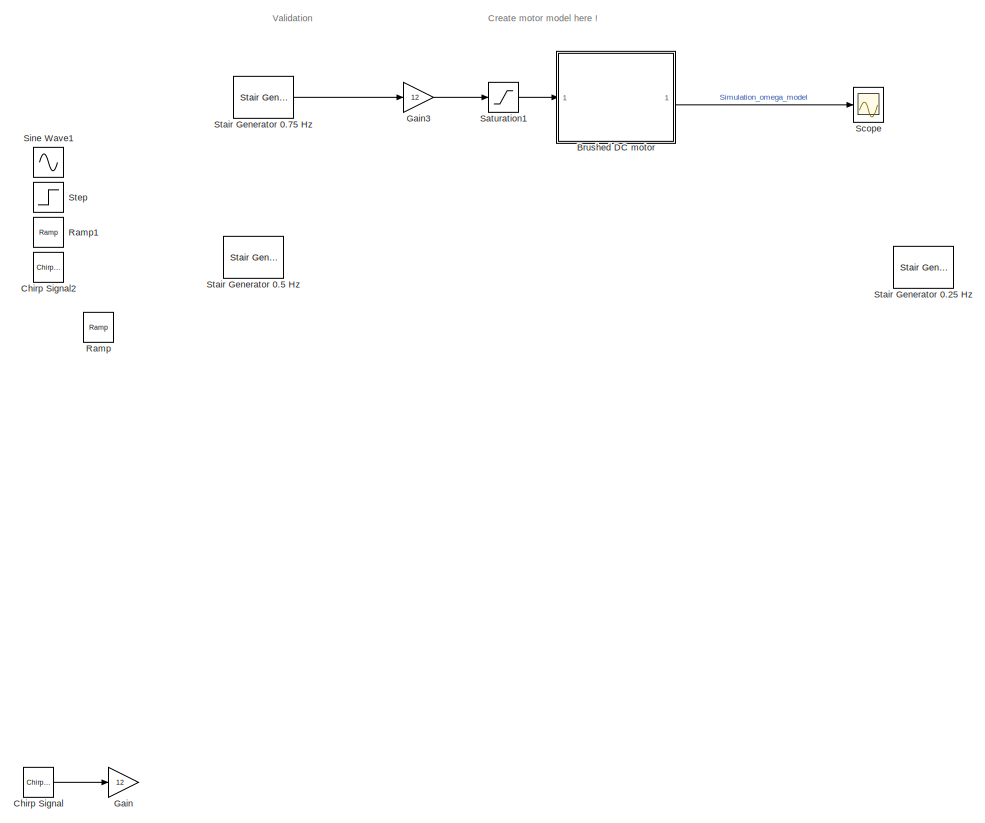
[diagram: root canvas - part 1/2, left side, full height]
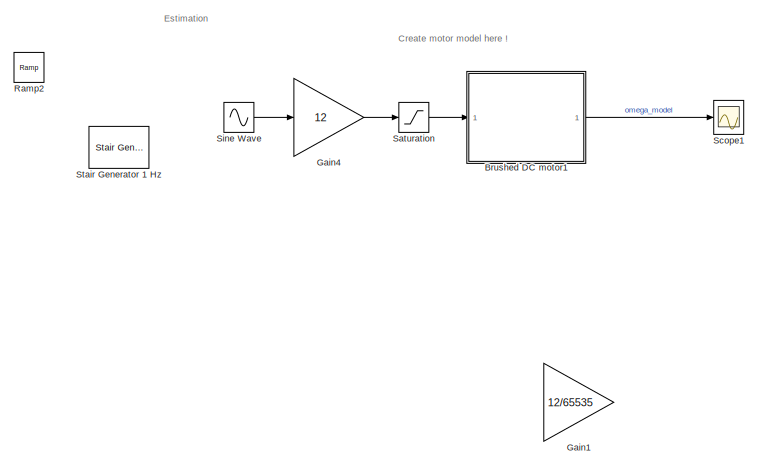
[diagram: root canvas - part 2/2, top right region]
MODEL slx_f4a1346be4b6
KIND model
CONFIG AbsTol = auto
CONFIG EnableMultiTasking = off
CONFIG FixedStep = 0.0005
CONFIG MaxStep = auto
CONFIG MinStep = auto
CONFIG RelTol = 1e-3
CONFIG SampleTimeConstraint = Unconstrained
CONFIG SolverName = FixedStepAuto
CONFIG StartTime = 0.0
CONFIG StopTime = 20
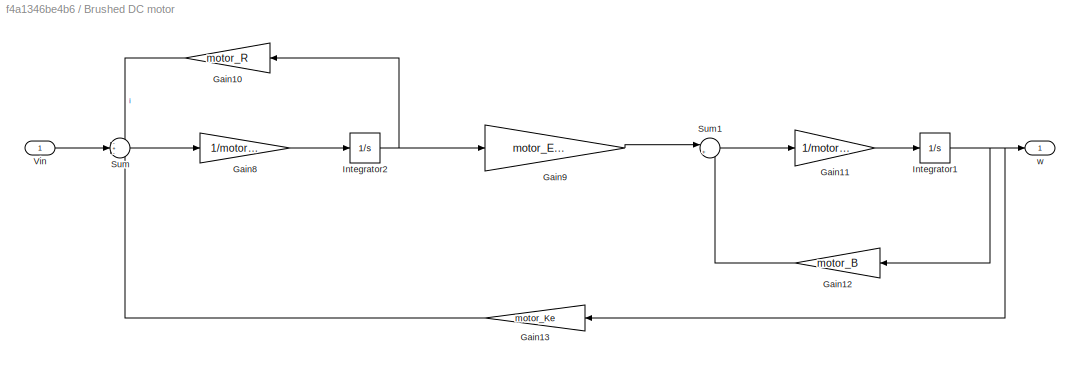
BLOCK [SubSystem] Brushed DC motor
  Commented = on
BLOCK [Gain] Brushed DC motor/Gain10
  Gain = motor_R
  NameLocation = top
BLOCK [Gain] Brushed DC motor/Gain11
  Gain = 1/motor_J
BLOCK [Gain] Brushed DC motor/Gain12
  Gain = motor_B
  NameLocation = top
BLOCK [Gain] Brushed DC motor/Gain13
  Gain = motor_Ke
  NameLocation = top
BLOCK [Gain] Brushed DC motor/Gain8
  Gain = 1/motor_L
BLOCK [Gain] Brushed DC motor/Gain9
  Gain = motor_Eff*motor_Ke
BLOCK [Integrator] Brushed DC motor/Integrator1
BLOCK [Integrator] Brushed DC motor/Integrator2
BLOCK [Sum] Brushed DC motor/Sum
  Inputs = -+-
BLOCK [Sum] Brushed DC motor/Sum1
  Inputs = |+-
BLOCK [Inport] Brushed DC motor/Vin
BLOCK [Outport] Brushed DC motor/w
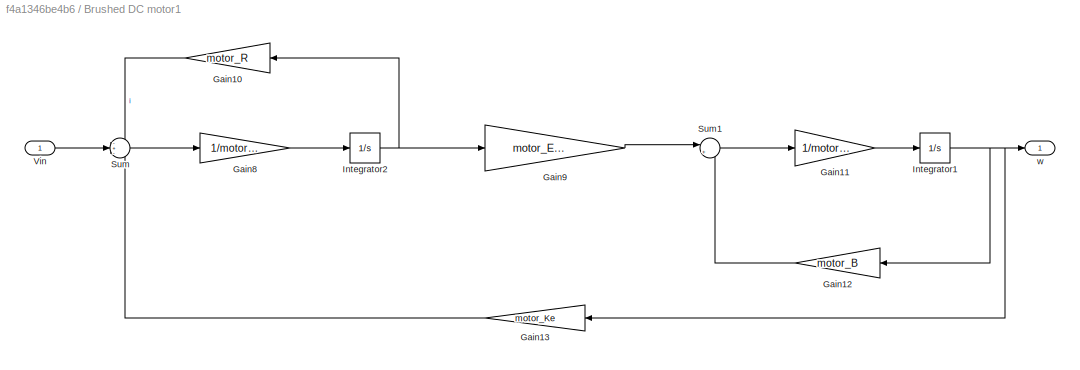
BLOCK [SubSystem] Brushed DC motor1
BLOCK [Gain] Brushed DC motor1/Gain10
  Gain = motor_R
  NameLocation = top
BLOCK [Gain] Brushed DC motor1/Gain11
  Gain = 1/motor_J
BLOCK [Gain] Brushed DC motor1/Gain12
  Gain = motor_B
  NameLocation = top
BLOCK [Gain] Brushed DC motor1/Gain13
  Gain = motor_Ke
  NameLocation = top
BLOCK [Gain] Brushed DC motor1/Gain8
  Gain = 1/motor_L
BLOCK [Gain] Brushed DC motor1/Gain9
  Gain = motor_Eff*motor_Ke
BLOCK [Integrator] Brushed DC motor1/Integrator1
BLOCK [Integrator] Brushed DC motor1/Integrator2
BLOCK [Sum] Brushed DC motor1/Sum
  Inputs = -+-
BLOCK [Sum] Brushed DC motor1/Sum1
  Inputs = |+-
BLOCK [Inport] Brushed DC motor1/Vin
BLOCK [Outport] Brushed DC motor1/w
BLOCK [Reference] Chirp Signal  REF=simulink/Sources/Chirp Signal
  Commented = on
  SourceBlock = simulink/Sources/Chirp Signal
  SourceType = chirp
BLOCK [Reference] Chirp Signal2  REF=simulink/Sources/Chirp Signal
  Commented = on
  SourceBlock = simulink/Sources/Chirp Signal
  SourceType = chirp
BLOCK [Gain] Gain
  Commented = on
  Gain = 12
BLOCK [Gain] Gain1
  Commented = on
  Gain = 12/65535
BLOCK [Gain] Gain3
  Commented = on
  Gain = 12
BLOCK [Gain] Gain4
  Gain = 12
BLOCK [Reference] Ramp  REF=simulink/Sources/Ramp
  Commented = on
  SourceBlock = simulink/Sources/Ramp
  SourceType = Ramp
BLOCK [Reference] Ramp1  REF=simulink/Sources/Ramp
  Commented = on
  SourceBlock = simulink/Sources/Ramp
  SourceType = Ramp
BLOCK [Reference] Ramp2  REF=simulink/Sources/Ramp
  Commented = on
  SourceBlock = simulink/Sources/Ramp
  SourceType = Ramp
BLOCK [Saturate] Saturation
  LowerLimit = -12
  UpperLimit = 12
BLOCK [Saturate] Saturation1
  Commented = on
  LowerLimit = -12
  UpperLimit = 12
BLOCK [Scope] Scope
  ActiveDisplayYMaximum = 73726.875
  ActiveDisplayYMinimum = -8191.8749999999982
  Floating = off
  GraphicalSettings = {"Style":{"BackgroundColor":[0.12941176470588237,0.12941176470588237,0.12941176470588237],"AxesColor":[0.07058823529411765,0.07058823529411765,0.07058823529411765],"LabelsColor":[0.8509803921568627,0.8509803921568627,0.8509803921568627],"PreserveColors":false,"Visible":[true,true],"LineStyle":["-","-"],"LineWidth":[1.5,1.5],"BarWidth":[0.9,0.9],"LineColor":["auto","auto"],"LineFaceAlpha":[1,1],"Li...<+2116ch>
  MultipleDisplayCache = [{"MaxYLimMag":73726.875,"MaxYLimReal":73726.875,"MinYLimMag":0,"MinYLimReal":-8191.8749999999982,"PlotAsMagnitudePhase":false,"ShowGrid":true,"ShowLegend":false,"Title":"%<SignalLabel>","YLabel":""}]
  NumInputPorts = 2
  ScopeFrameLocation = window
  WasSavedAsWebScope = on
  WindowPosition = [488.000000,222.000000,560.000000,420.000000,]
BLOCK [Scope] Scope1
  ActiveDisplayYMaximum = 51.071650378806922
  ActiveDisplayYMinimum = -34.239482473644017
  DataLoggingVariableName = ScopeData1
  Floating = off
  GraphicalSettings = {"Style":{"BackgroundColor":[0.12941176470588237,0.12941176470588237,0.12941176470588237],"AxesColor":[0.07058823529411765,0.07058823529411765,0.07058823529411765],"LabelsColor":[0.8509803921568627,0.8509803921568627,0.8509803921568627],"PreserveColors":false,"Visible":[true],"LineStyle":["-"],"LineWidth":[1.5],"BarWidth":[0.9],"LineColor":["auto"],"LineFaceAlpha":[1],"LineEdgeAlpha":[1],"Marker":...<+2007ch>
  MultipleDisplayCache = [{"MaxYLimMag":51.071650378806922,"MaxYLimReal":51.071650378806922,"MinYLimMag":0,"MinYLimReal":-34.239482473644017,"PlotAsMagnitudePhase":false,"ShowGrid":true,"ShowLegend":false,"Title":"%<SignalLabel>","YLabel":""}]
  NumInputPorts = 1
  ScopeFrameLocation = window
  WasSavedAsWebScope = on
  WindowPosition = [488.000000,222.000000,560.000000,420.000000,]
BLOCK [Sin] Sine Wave
  Frequency = 1*2*pi
  SampleTime = 0
BLOCK [Sin] Sine Wave1
  Commented = on
  Frequency = 0.5*2*pi
  SampleTime = 0
BLOCK [Reference] Stair Generator 0.25 Hz  REF=eeStairGenerator/Stair Generator
  Commented = on
  LibrarySourceBlock = ee_sl_lib/General Control/Stair Generator
  SourceBlock = eeStairGenerator/Stair Generator
  SourceType = Stair Generator
BLOCK [Reference] Stair Generator 0.5 Hz  REF=eeStairGenerator/Stair Generator
  Commented = on
  LibrarySourceBlock = ee_sl_lib/General Control/Stair Generator
  SourceBlock = eeStairGenerator/Stair Generator
  SourceType = Stair Generator
BLOCK [Reference] Stair Generator 0.75 Hz  REF=eeStairGenerator/Stair Generator
  Commented = on
  LibrarySourceBlock = ee_sl_lib/General Control/Stair Generator
  SourceBlock = eeStairGenerator/Stair Generator
  SourceType = Stair Generator
BLOCK [Reference] Stair Generator 1 Hz  REF=eeStairGenerator/Stair Generator
  Commented = on
  LibrarySourceBlock = ee_sl_lib/General Control/Stair Generator
  SourceBlock = eeStairGenerator/Stair Generator
  SourceType = Stair Generator
BLOCK [Step] Step
  After = 0.6*12
  Commented = on
  SampleTime = 0
  Time = 10
ANNOTATION (root): Estimation
ANNOTATION (root): Validation
ANNOTATION (root): Create motor model here !
LINE Brushed DC motor/Gain10:1 -> Brushed DC motor/Sum:1
LINE Brushed DC motor/Gain11:1 -> Brushed DC motor/Integrator1:1
LINE Brushed DC motor/Gain12:1 -> Brushed DC motor/Sum1:2
LINE Brushed DC motor/Gain13:1 -> Brushed DC motor/Sum:3
LINE Brushed DC motor/Gain8:1 -> Brushed DC motor/Integrator2:1
LINE Brushed DC motor/Gain9:1 -> Brushed DC motor/Sum1:1
NET Brushed DC motor/Integrator1:1 -> Brushed DC motor/Gain12:1, Brushed DC motor/Gain13:1, Brushed DC motor/w:1
NET Brushed DC motor/Integrator2:1 -> Brushed DC motor/Gain10:1, Brushed DC motor/Gain9:1
LINE Brushed DC motor/Sum1:1 -> Brushed DC motor/Gain11:1
LINE Brushed DC motor/Sum:1 -> Brushed DC motor/Gain8:1
LINE Brushed DC motor/Vin:1 -> Brushed DC motor/Sum:2
LINE Brushed DC motor1/Gain10:1 -> Brushed DC motor1/Sum:1
LINE Brushed DC motor1/Gain11:1 -> Brushed DC motor1/Integrator1:1
LINE Brushed DC motor1/Gain12:1 -> Brushed DC motor1/Sum1:2
LINE Brushed DC motor1/Gain13:1 -> Brushed DC motor1/Sum:3
LINE Brushed DC motor1/Gain8:1 -> Brushed DC motor1/Integrator2:1
LINE Brushed DC motor1/Gain9:1 -> Brushed DC motor1/Sum1:1
NET Brushed DC motor1/Integrator1:1 -> Brushed DC motor1/Gain12:1, Brushed DC motor1/Gain13:1, Brushed DC motor1/w:1
NET Brushed DC motor1/Integrator2:1 -> Brushed DC motor1/Gain10:1, Brushed DC motor1/Gain9:1
LINE Brushed DC motor1/Sum1:1 -> Brushed DC motor1/Gain11:1
LINE Brushed DC motor1/Sum:1 -> Brushed DC motor1/Gain8:1
LINE Brushed DC motor1/Vin:1 -> Brushed DC motor1/Sum:2
LINE Brushed DC motor1:1 -> Scope1:1
LINE Brushed DC motor:1 -> Scope:1
LINE Chirp Signal:1 -> Gain:1
LINE Gain3:1 -> Saturation1:1
LINE Gain4:1 -> Saturation:1
LINE Saturation1:1 -> Brushed DC motor:1
LINE Saturation:1 -> Brushed DC motor1:1
LINE Sine Wave:1 -> Gain4:1
LINE Stair Generator 0.75 Hz:1 -> Gain3:1
note: NET lines group one-source signal fan-out (src -> all destinations, sorted); 1:1 wires keep LINE
